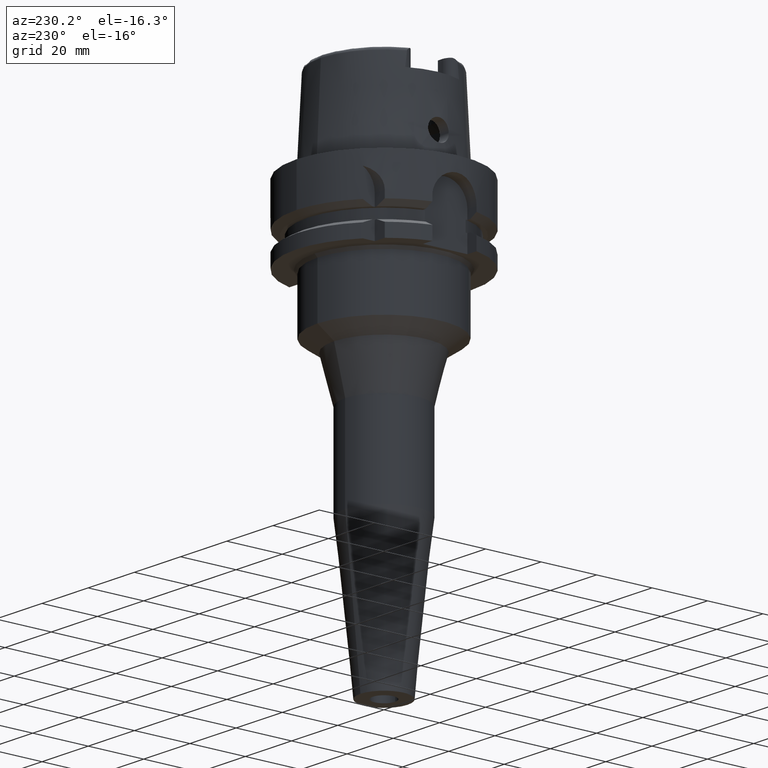
[diagram: clean part render]
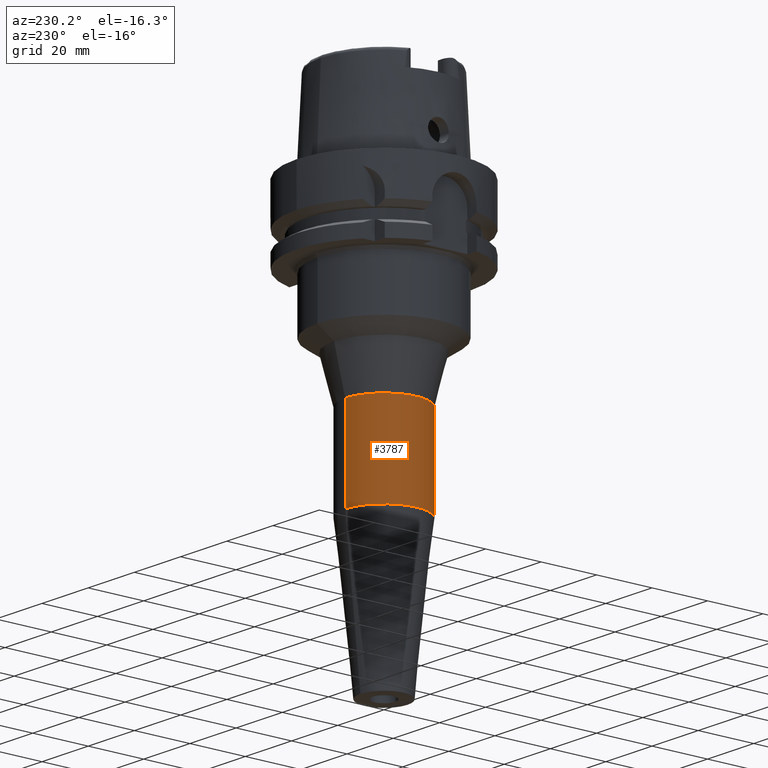
[diagram: same view with one face highlighted and labeled with its STEP entity id]
A machine part, auxiliary view. The second image highlights one B-rep face of the part: STEP entity #3787.
In plain terms, the highlighted cylindrical surface (partial cylindrical patch) has radius 14 mm, axis along (0, 0, 1).
Its self-contained STEP definition (entity closure, byte-faithful):
#1721=CARTESIAN_POINT('',(0.E0,0.E0,-6.5658E1));
#1722=DIRECTION('',(0.E0,0.E0,-1.E0));
#1723=DIRECTION('',(0.E0,-1.E0,0.E0));
#1724=AXIS2_PLACEMENT_3D('',#1721,#1722,#1723);
#1729=DIRECTION('',(0.E0,5.082757297111E-14,-1.E0));
#1730=VECTOR('',#1729,3.201299550178E1);
#1731=CARTESIAN_POINT('',(0.E0,-1.4E1,-6.5658E1));
#1732=LINE('',#1731,#1730);
#1736=DIRECTION('',(0.E0,-5.082757297111E-14,-1.E0));
#1737=VECTOR('',#1736,3.201299550178E1);
#1738=CARTESIAN_POINT('',(0.E0,1.4E1,-6.5658E1));
#1739=LINE('',#1738,#1737);
#1758=CARTESIAN_POINT('',(0.E0,0.E0,-9.767099550178E1));
#1759=DIRECTION('',(0.E0,0.E0,1.E0));
#1760=DIRECTION('',(0.E0,1.E0,0.E0));
#1761=AXIS2_PLACEMENT_3D('',#1758,#1759,#1760);
#2440=CARTESIAN_POINT('',(0.E0,1.4E1,-9.767099550178E1));
#2441=VERTEX_POINT('',#2440);
#2442=CARTESIAN_POINT('',(0.E0,-1.4E1,-9.767099550178E1));
#2443=VERTEX_POINT('',#2442);
#2444=CARTESIAN_POINT('',(0.E0,1.4E1,-6.5658E1));
#2445=VERTEX_POINT('',#2444);
#2446=CARTESIAN_POINT('',(0.E0,-1.4E1,-6.5658E1));
#2447=VERTEX_POINT('',#2446);
#3773=CARTESIAN_POINT('',(0.E0,0.E0,-1.591E2));
#3774=DIRECTION('',(0.E0,0.E0,1.E0));
#3775=DIRECTION('',(0.E0,1.E0,0.E0));
#3776=AXIS2_PLACEMENT_3D('',#3773,#3774,#3775);
#3777=CYLINDRICAL_SURFACE('',#3776,1.4E1);
#3779=ORIENTED_EDGE('',*,*,#3778,.F.);
#3780=ORIENTED_EDGE('',*,*,#3768,.F.);
#3782=ORIENTED_EDGE('',*,*,#3781,.T.);
#3784=ORIENTED_EDGE('',*,*,#3783,.F.);
#3785=EDGE_LOOP('',(#3779,#3780,#3782,#3784));
#3786=FACE_OUTER_BOUND('',#3785,.F.);
#1725=CIRCLE('',#1724,1.4E1);
#1762=CIRCLE('',#1761,1.4E1);
#3768=EDGE_CURVE('',#2447,#2445,#1725,.T.);
#3778=EDGE_CURVE('',#2445,#2441,#1739,.T.);
#3781=EDGE_CURVE('',#2447,#2443,#1732,.T.);
#3783=EDGE_CURVE('',#2441,#2443,#1762,.T.);
#3787=ADVANCED_FACE('',(#3786),#3777,.T.);